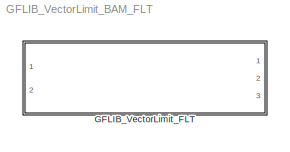
MODEL GFLIB_VectorLimit_BAM_FLT
KIND model
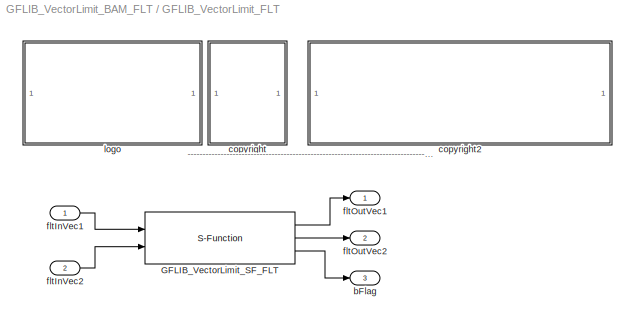
BLOCK [SubSystem] GFLIB_VectorLimit_FLT
  Ports = [2, 3]
  RequestExecContextInheritance = off
  SID = 1
BLOCK [S-Function] GFLIB_VectorLimit_FLT/GFLIB_VectorLimit_SF_FLT
  EnableBusSupport = off
  FunctionName = GFLIB_VectorLimit_SF_FLT
  Parameters = fltLimit
  Ports = [2, 3]
  SID = 4
BLOCK [Outport] GFLIB_VectorLimit_FLT/bFlag
  IconDisplay = Port number
  Port = 3
  SID = 10
BLOCK [SubSystem] GFLIB_VectorLimit_FLT/<copyright redacted>
  Ports = []
  RequestExecContextInheritance = off
  SID = 5
BLOCK [SubSystem] GFLIB_VectorLimit_FLT/copyright2
  Ports = []
  RequestExecContextInheritance = off
  SID = 6
BLOCK [Inport] GFLIB_VectorLimit_FLT/fltInVec1
  IconDisplay = Port number
  SID = 2
BLOCK [Inport] GFLIB_VectorLimit_FLT/fltInVec2
  IconDisplay = Port number
  Port = 2
  SID = 3
BLOCK [Outport] GFLIB_VectorLimit_FLT/fltOutVec1
  IconDisplay = Port number
  SID = 8
BLOCK [Outport] GFLIB_VectorLimit_FLT/fltOutVec2
  IconDisplay = Port number
  Port = 2
  SID = 9
BLOCK [SubSystem] GFLIB_VectorLimit_FLT/logo
  Ports = []
  RequestExecContextInheritance = off
  SID = 7
ANNOTATION GFLIB_VectorLimit_FLT: ---------------------------------------------------------------------------------------------------------------------------------------------------------------------------------------------------
LINE GFLIB_VectorLimit_FLT/GFLIB_VectorLimit_SF_FLT:1 -> GFLIB_VectorLimit_FLT/fltOutVec1:1
LINE GFLIB_VectorLimit_FLT/GFLIB_VectorLimit_SF_FLT:2 -> GFLIB_VectorLimit_FLT/fltOutVec2:1
LINE GFLIB_VectorLimit_FLT/GFLIB_VectorLimit_SF_FLT:3 -> GFLIB_VectorLimit_FLT/bFlag:1
LINE GFLIB_VectorLimit_FLT/fltInVec1:1 -> GFLIB_VectorLimit_FLT/GFLIB_VectorLimit_SF_FLT:1
LINE GFLIB_VectorLimit_FLT/fltInVec2:1 -> GFLIB_VectorLimit_FLT/GFLIB_VectorLimit_SF_FLT:2
